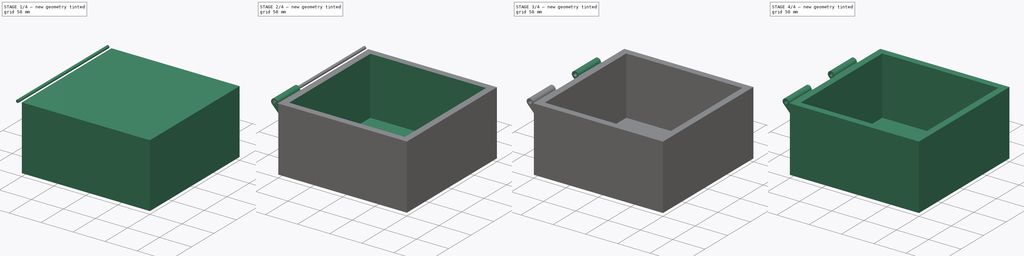
[diagram: build sequence overview — one tinted view per stage of 4, left to right]
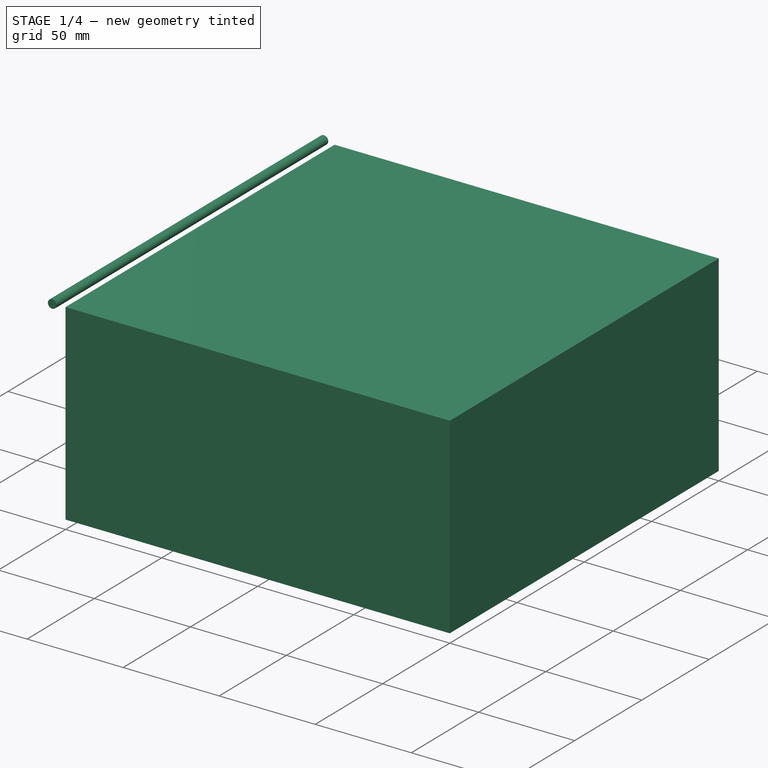
[diagram: stage 1 of 4 — iso view after this stage's code; geometry added in this stage tinted green]
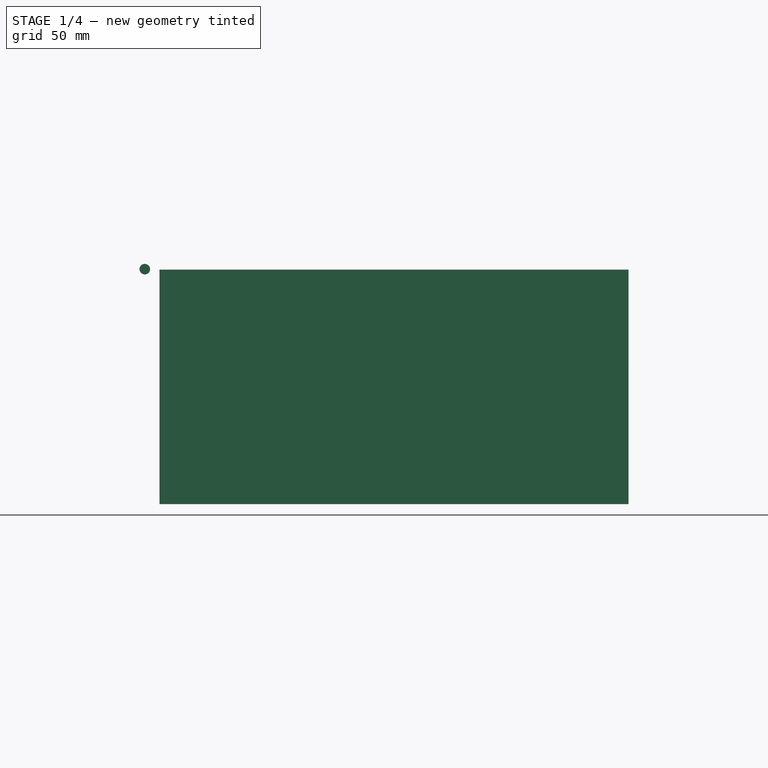
[diagram: stage 1 of 4 — front view after this stage's code; geometry added in this stage tinted green]
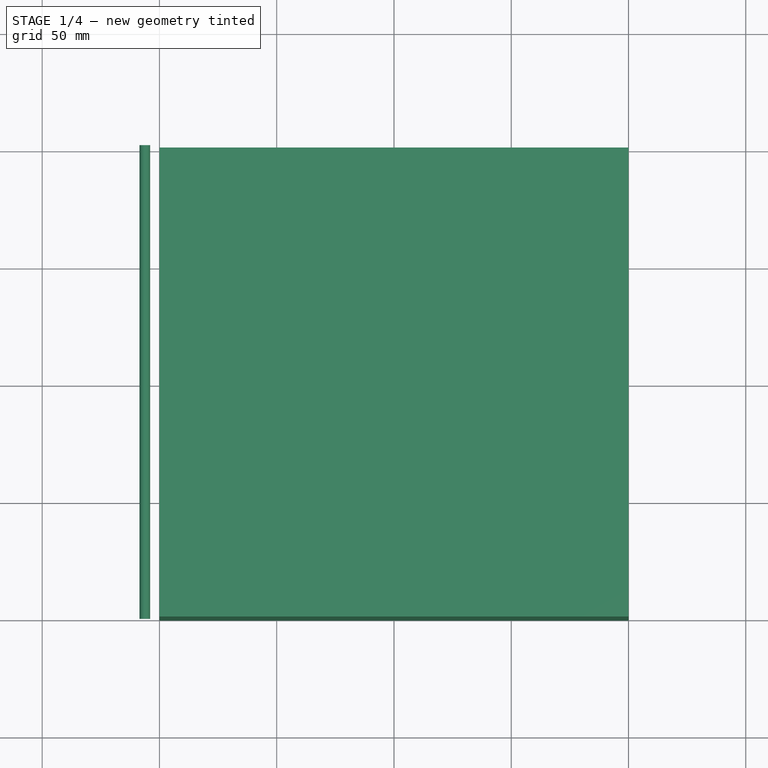
[diagram: stage 1 of 4 — top view after this stage's code; geometry added in this stage tinted green]
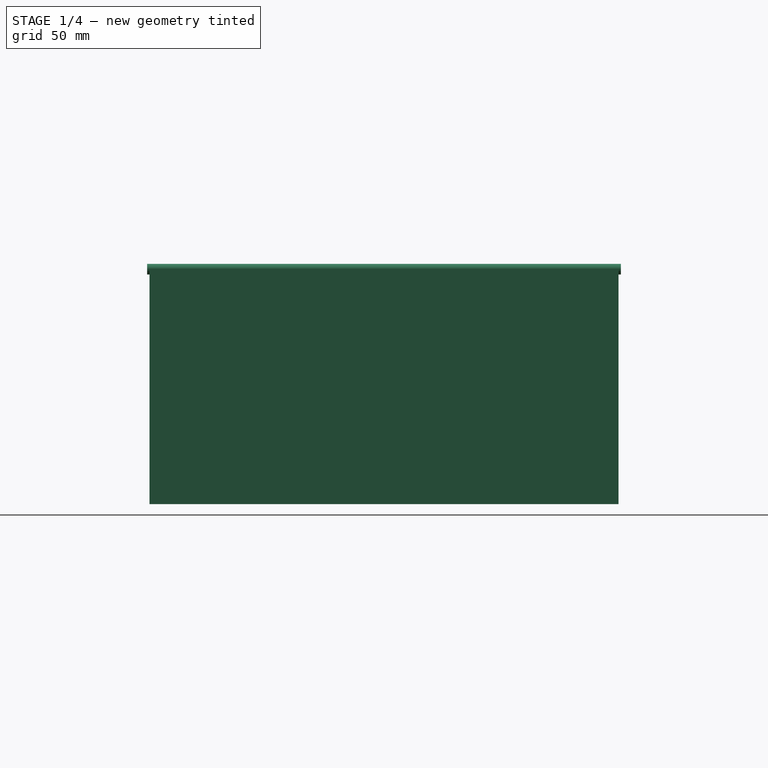
[diagram: stage 1 of 4 — right view after this stage's code; geometry added in this stage tinted green]
FCSTD DOCUMENT  (FreeCAD 0.21R33771 (Git))
Label: hlutur halda
License: All rights reserved
LicenseURL: https://en.wikipedia.org/wiki/All_rights_reserved
objects: Sketcher::SketchObject×7, PartDesign::Pad×5, PartDesign::Body×3, PartDesign::Pocket×2, PartDesign::LinearPattern×2, PartDesign::ShapeBinder×1
note: 27 computed .brp shape members not serialized (recipe doc carries the construction recipe); baked Part::Feature solids carry a one-line shape summary decoded from their .brp

FEATURE [Sketcher::SketchObject] Sketch003
  FullyConstrained = true
  MapMode = 5
  Support = -> [XY_Plane003]
  sketch-geometry (4):
    g0: LineSegment StartX=-100 StartY=100 StartZ=0 EndX=100 EndY=100 EndZ=0
    g1: LineSegment StartX=100 StartY=100 StartZ=0 EndX=100 EndY=-100 EndZ=0
    g2: LineSegment StartX=100 StartY=-100 StartZ=0 EndX=-100 EndY=-100 EndZ=0
    g3: LineSegment StartX=-100 StartY=-100 StartZ=0 EndX=-100 EndY=100 EndZ=0
  constraints (10):
    c: Coincident(g0,g1)
    c: Coincident(g1,g2)
    c: Coincident(g2,g3)
    c: Coincident(g3,g0)
    c: Horizontal(g2)
    c: Vertical(g1)
    c: Equal(g0,g3)
    c: DistanceX(g0,g0) = 200
    c: Symmetric(g0,g0,g-2)
    c: Symmetric(g0,g2,g-1)
FEATURE [PartDesign::Pad] Pad002
  Direction = (0,0,1)
  Length = 100
  Length2 = 10
  Profile = -> Sketch003
  ReferenceAxis = -> Sketch003 [N_Axis]
  Type = 0
FEATURE [PartDesign::Body] Body003  label="top"
  Group = -> [Sketch003,Pad002,Sketch004,Pocket001,Sketch005,Pad003,LinearPattern001]
  Origin = -> Origin003
  Placement = pos=(0,-1.1e-14,200.5) rot=(1,0,0;3.14159rad)
  Tip = -> LinearPattern001
FEATURE [Sketcher::SketchObject] Sketch006
  FullyConstrained = false
  MapMode = 5
  Placement = pos=(0,0,0) rot=(1,0,0;1.5708rad)
  Support = -> [XZ_Plane]
  sketch-geometry (1):
    g0: Circle CenterX=-106.25 CenterY=100.185 CenterZ=0 NormalX=0 NormalY=0 NormalZ=1 AngleXU=0 Radius=2.25
  constraints (1):
    c: Diameter(g0) = 4.5
FEATURE [PartDesign::Pad] Pad004
  Direction = (0,-1,2e-16)
  Length = 101
  Length2 = 101
  Midplane = true
  Placement = pos=(0,0,0) rot=(1,0,0;1.5708rad)
  Profile = -> Sketch006
  ReferenceAxis = -> Sketch006 [N_Axis]
  Type = 4
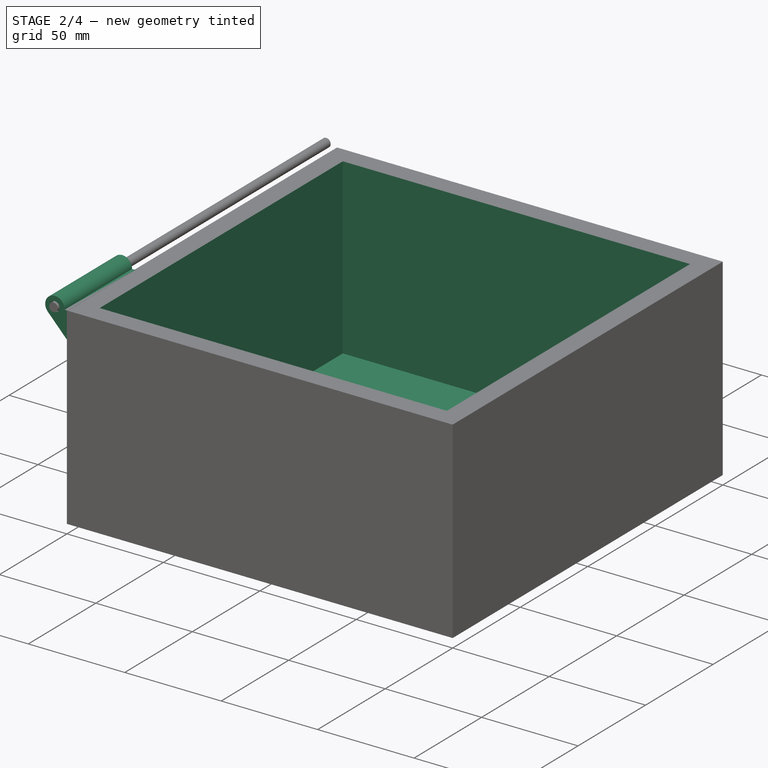
[diagram: stage 2 of 4 — iso view after this stage's code; geometry added in this stage tinted green]
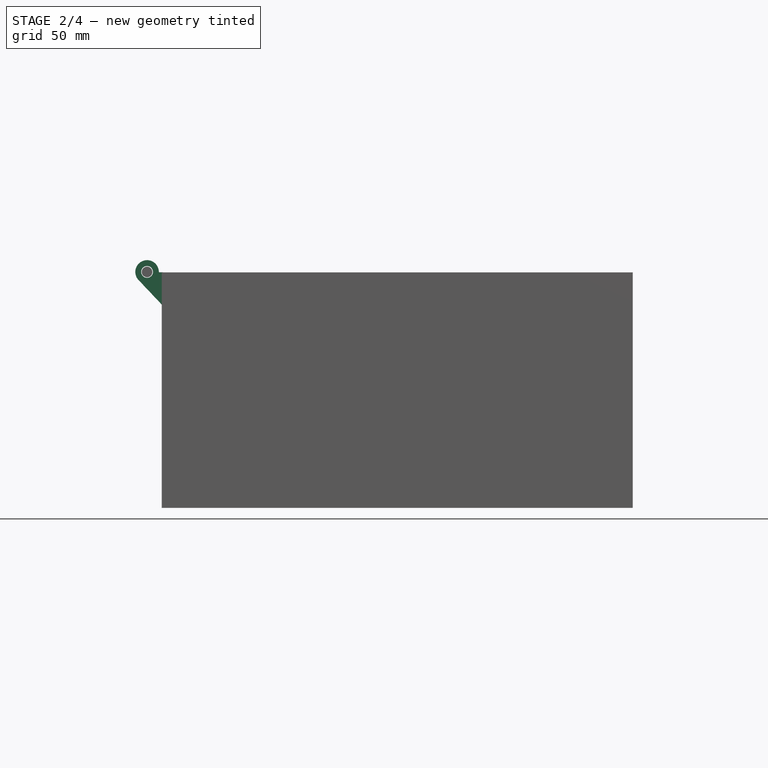
[diagram: stage 2 of 4 — front view after this stage's code; geometry added in this stage tinted green]
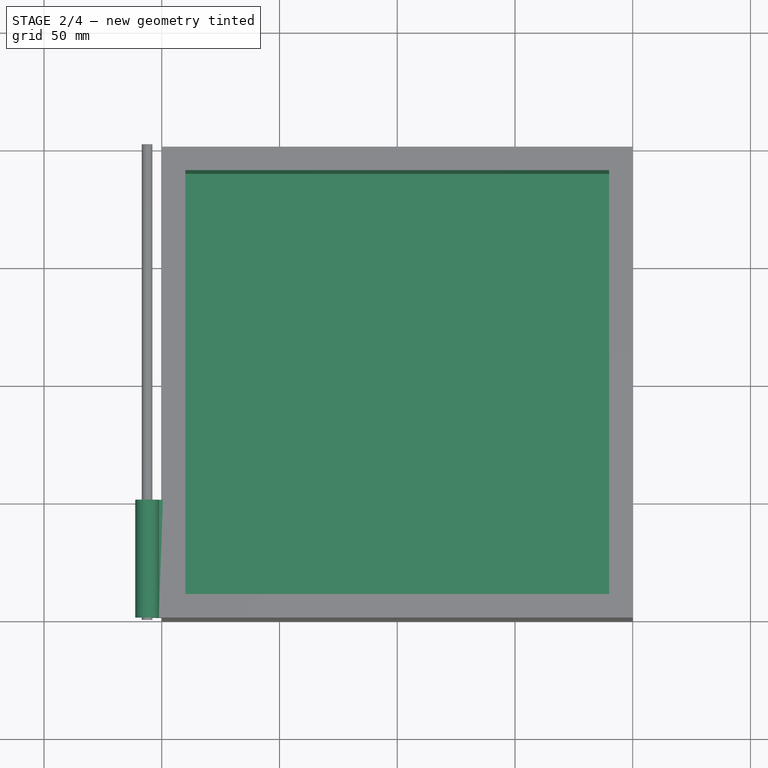
[diagram: stage 2 of 4 — top view after this stage's code; geometry added in this stage tinted green]
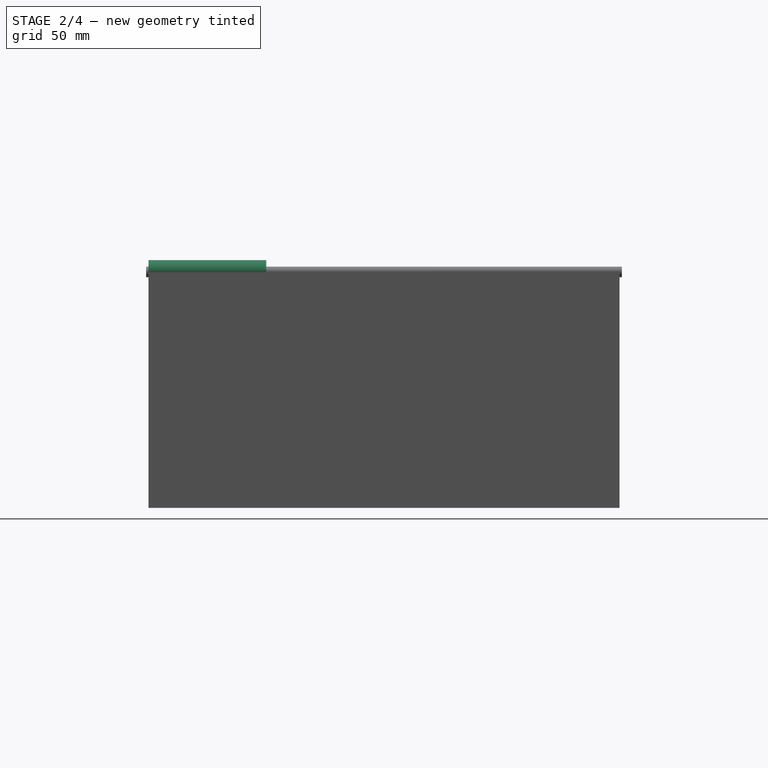
[diagram: stage 2 of 4 — right view after this stage's code; geometry added in this stage tinted green]
FEATURE [Sketcher::SketchObject] Sketch004
  ExternalGeometry = -> [Pad002]
  FullyConstrained = true
  MapMode = 5
  Placement = pos=(0,0,100) rot=(0,0,1;0rad)
  Support = -> [Pad002]
  sketch-geometry (4):
    g0: LineSegment StartX=-90 StartY=90 StartZ=0 EndX=90 EndY=90 EndZ=0
    g1: LineSegment StartX=90 StartY=90 StartZ=0 EndX=90 EndY=-90 EndZ=0
    g2: LineSegment StartX=90 StartY=-90 StartZ=0 EndX=-90 EndY=-90 EndZ=0
    g3: LineSegment StartX=-90 StartY=-90 StartZ=0 EndX=-90 EndY=90 EndZ=0
  constraints (12):
    c: Coincident(g0,g1)
    c: Coincident(g1,g2)
    c: Coincident(g2,g3)
    c: Coincident(g3,g0)
    c: Horizontal(g0)
    c: Horizontal(g2)
    c: Vertical(g1)
    c: Vertical(g3)
    c: DistanceY(g0,g-3) = 10
    c: DistanceX(g-3,g0) = 10
    c: DistanceX(g0,g-4) = 10
    c: DistanceY(g-5,g1) = 10
FEATURE [PartDesign::Pocket] Pocket001
  BaseFeature = -> Pad002
  Direction = (0,0,-1)
  Length = 90
  Length2 = 5
  Profile = -> Sketch004
  ReferenceAxis = -> Sketch004 [N_Axis]
  Type = 0
FEATURE [Sketcher::SketchObject] Sketch005  label="hinge001"
  ExternalGeometry = -> [Pocket001]
  FullyConstrained = false
  MapMode = 5
  Placement = pos=(0,-100,0) rot=(1,0,0;1.5708rad)
  Support = -> [Pocket001]
  sketch-geometry (6):
    g0: ArcOfCircle CenterX=-106.241 CenterY=100.196 CenterZ=0 NormalX=0 NormalY=0 NormalZ=1 AngleXU=0 Radius=5 StartAngle=6.2552 EndAngle=10.1399
    g1: Circle CenterX=-106.241 CenterY=100.196 CenterZ=0 NormalX=0 NormalY=0 NormalZ=1 AngleXU=0 Radius=2.5
    g2: LineSegment StartX=-106.241 StartY=100.196 StartZ=0 EndX=-99.9854 EndY=100.021 EndZ=0
    g3: LineSegment StartX=-110.016 StartY=96.9171 StartZ=0 EndX=-99.5915 EndY=85.8918 EndZ=0
    g4: LineSegment StartX=-99.5915 StartY=85.8918 StartZ=0 EndX=-99.5 EndY=100.056 EndZ=0
    g5: LineSegment StartX=-99.5 StartY=100.056 StartZ=0 EndX=-101.243 EndY=100.056 EndZ=0
  constraints (12):
    c: Diameter(g0) = 10
    c: Coincident(g1,g0)
    c: Diameter(g1) = 5
    c: Coincident(g2,g0)
    c: Coincident(g4,g3)
    c: Horizontal(g5)
    c: Coincident(g4,g5)
    c: DistanceX(g-4,g4) = 0.5
    c: Coincident(g0,g3)
    c: Angle(g3,g2) = 0.785398
    c: Coincident(g0,g5)
    c: PointOnObject(g0,g2)
FEATURE [PartDesign::Pad] Pad003
  BaseFeature = -> Pocket001
  Direction = (0,-1,2e-16)
  Length = 50
  Length2 = 10
  Profile = -> Sketch005
  ReferenceAxis = -> Sketch005 [N_Axis]
  Reversed = true
  Type = 0
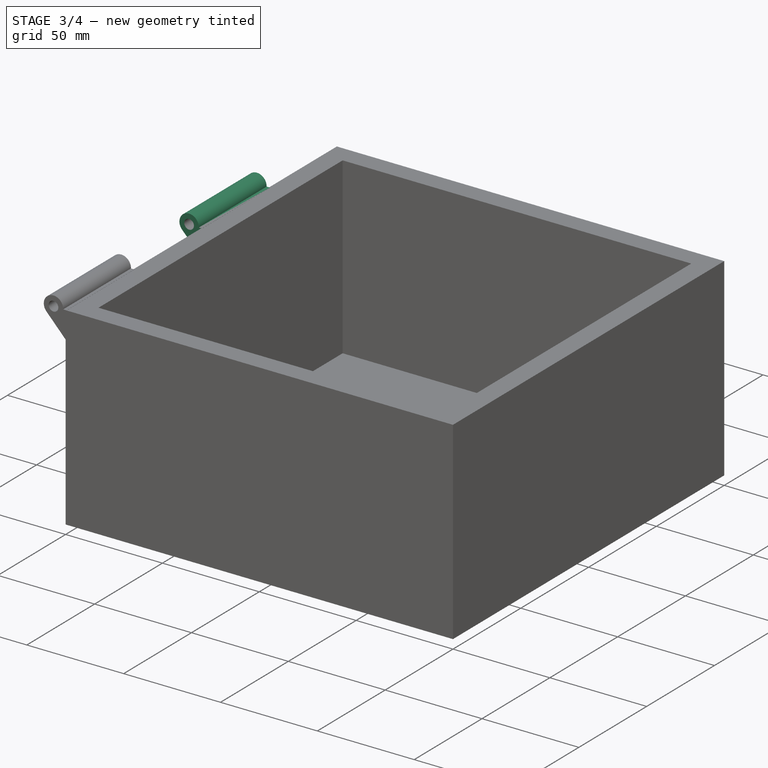
[diagram: stage 3 of 4 — iso view after this stage's code; geometry added in this stage tinted green]
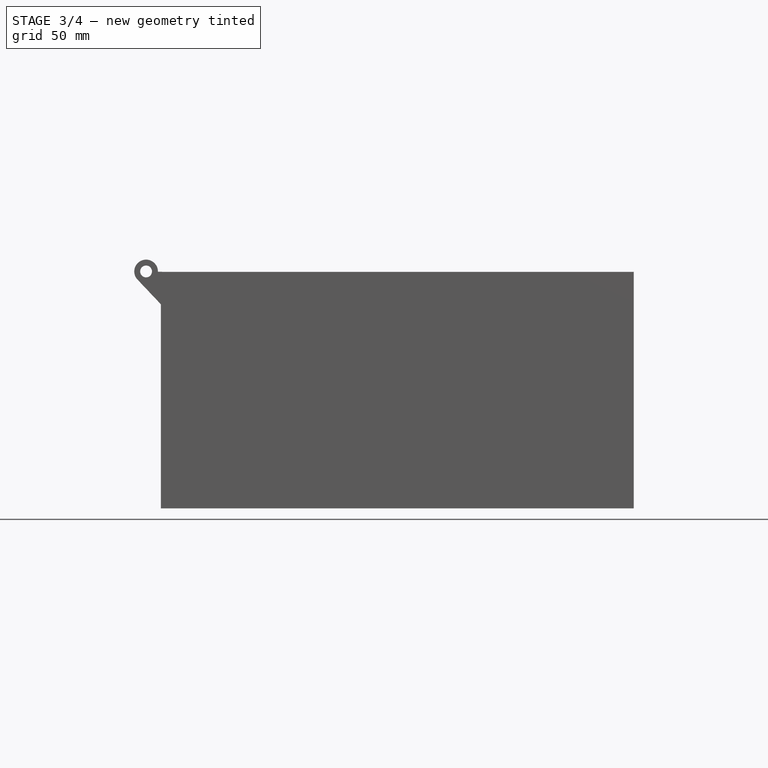
[diagram: stage 3 of 4 — front view after this stage's code; geometry added in this stage tinted green]
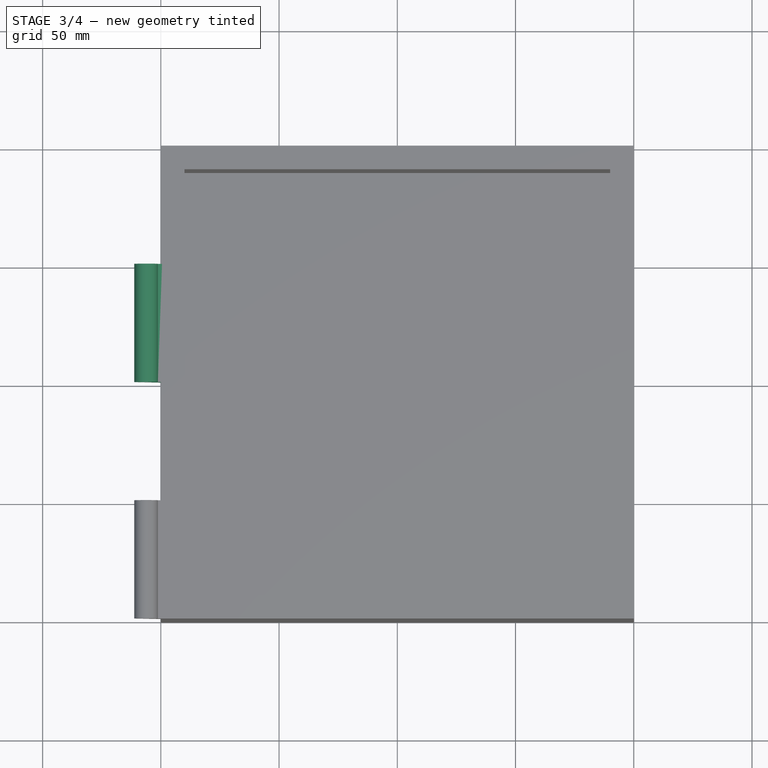
[diagram: stage 3 of 4 — top view after this stage's code; geometry added in this stage tinted green]
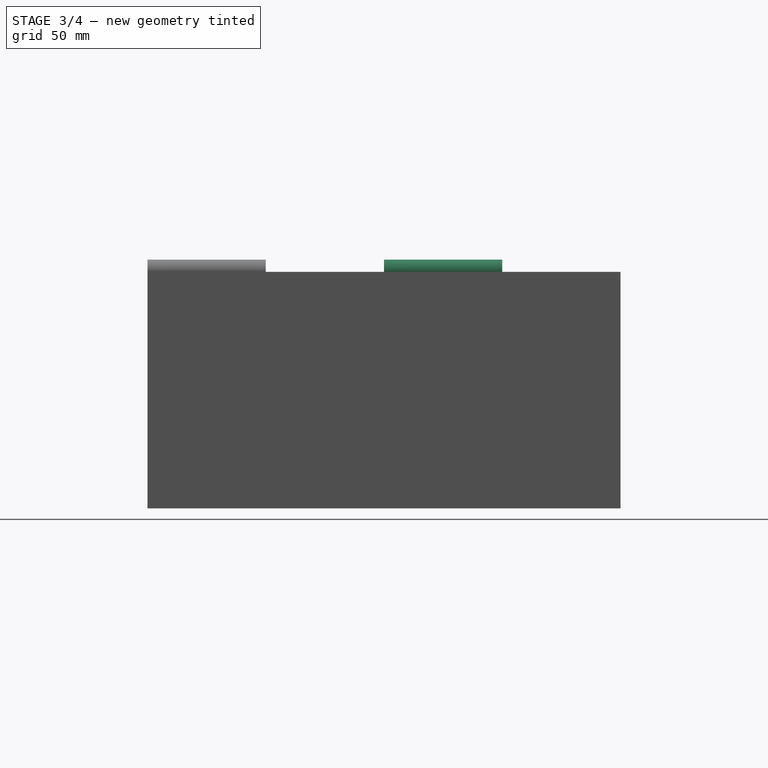
[diagram: stage 3 of 4 — right view after this stage's code; geometry added in this stage tinted green]
FEATURE [PartDesign::LinearPattern] LinearPattern001
  BaseFeature = -> Pad003
  Direction = -> Sketch005 [N_Axis]
  Length = 100
  Occurrences = 2
  Originals = -> [Pad003]
  Reversed = true
FEATURE [Sketcher::SketchObject] Sketch
  FullyConstrained = true
  MapMode = 2
  Placement = pos=(0,0,0) rot=(1,0,0;1.5708rad)
  Support = -> [Pad004]
  sketch-geometry (4):
    g0: LineSegment StartX=-100 StartY=100 StartZ=0 EndX=100 EndY=100 EndZ=0
    g1: LineSegment StartX=100 StartY=100 StartZ=0 EndX=100 EndY=-100 EndZ=0
    g2: LineSegment StartX=100 StartY=-100 StartZ=0 EndX=-100 EndY=-100 EndZ=0
    g3: LineSegment StartX=-100 StartY=-100 StartZ=0 EndX=-100 EndY=100 EndZ=0
  constraints (10):
    c: Coincident(g0,g1)
    c: Coincident(g1,g2)
    c: Coincident(g2,g3)
    c: Coincident(g3,g0)
    c: Horizontal(g2)
    c: Vertical(g1)
    c: Equal(g0,g3)
    c: DistanceX(g0,g0) = 200
    c: Symmetric(g0,g0,g-2)
    c: Symmetric(g0,g2,g-1)
FEATURE [PartDesign::Pad] Pad
  Direction = (0,-1,2e-16)
  Length = 100
  Length2 = 10
  Placement = pos=(0,0,0) rot=(1,0,0;1.5708rad)
  Profile = -> Sketch
  ReferenceAxis = -> Sketch [N_Axis]
  Type = 0
FEATURE [Sketcher::SketchObject] Sketch001
  ExternalGeometry = -> [Pad]
  FullyConstrained = true
  MapMode = 5
  Placement = pos=(0,0,100) rot=(0,0,1;0rad)
  Support = -> [Pad]
  sketch-geometry (4):
    g0: LineSegment StartX=-90 StartY=90 StartZ=0 EndX=90 EndY=90 EndZ=0
    g1: LineSegment StartX=90 StartY=90 StartZ=0 EndX=90 EndY=-90 EndZ=0
    g2: LineSegment StartX=90 StartY=-90 StartZ=0 EndX=-90 EndY=-90 EndZ=0
    g3: LineSegment StartX=-90 StartY=-90 StartZ=0 EndX=-90 EndY=90 EndZ=0
  constraints (12):
    c: Coincident(g0,g1)
    c: Coincident(g1,g2)
    c: Coincident(g2,g3)
    c: Coincident(g3,g0)
    c: Horizontal(g0)
    c: Horizontal(g2)
    c: Vertical(g1)
    c: Vertical(g3)
    c: DistanceY(g0,g-3) = 10
    c: DistanceX(g-3,g0) = 10
    c: DistanceX(g0,g-4) = 10
    c: DistanceY(g-5,g1) = 10
FEATURE [PartDesign::Pocket] Pocket
  BaseFeature = -> Pad
  Direction = (0,0,-1)
  Length = 90
  Length2 = 5
  Profile = -> Sketch001
  ReferenceAxis = -> Sketch001 [N_Axis]
  Type = 0
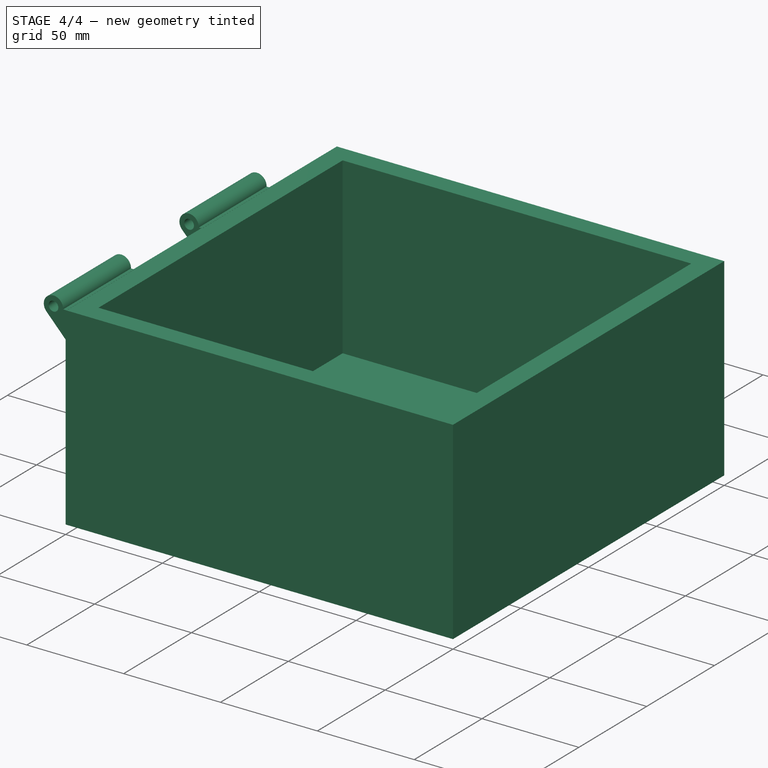
[diagram: stage 4 of 4 — iso view after this stage's code; geometry added in this stage tinted green]
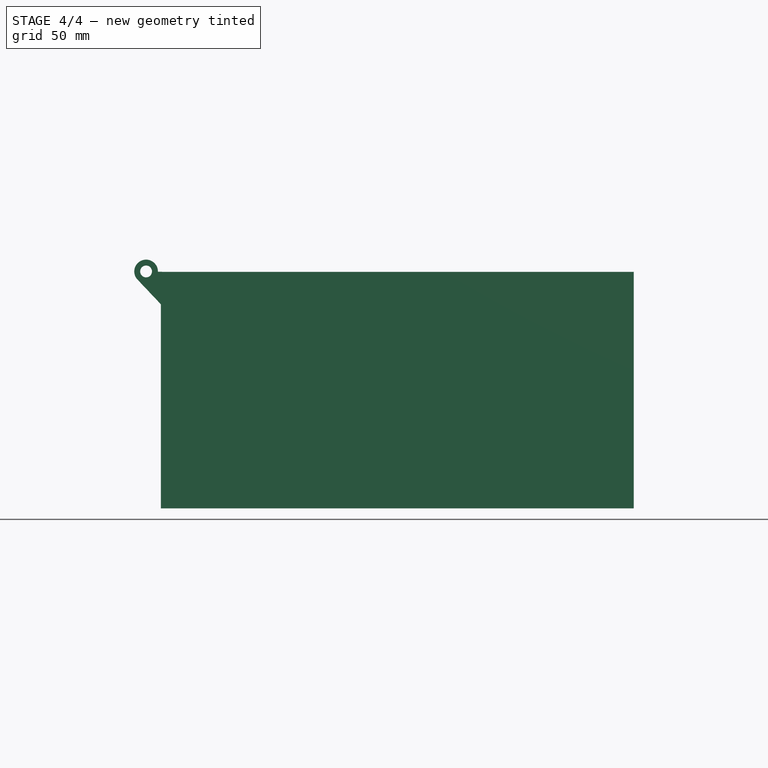
[diagram: stage 4 of 4 — front view after this stage's code; geometry added in this stage tinted green]
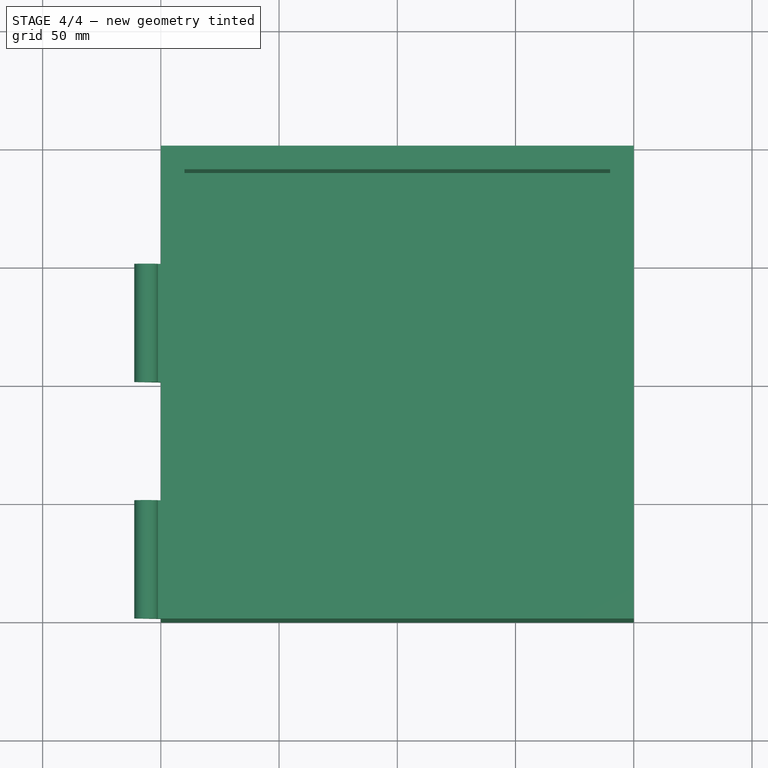
[diagram: stage 4 of 4 — top view after this stage's code; geometry added in this stage tinted green]
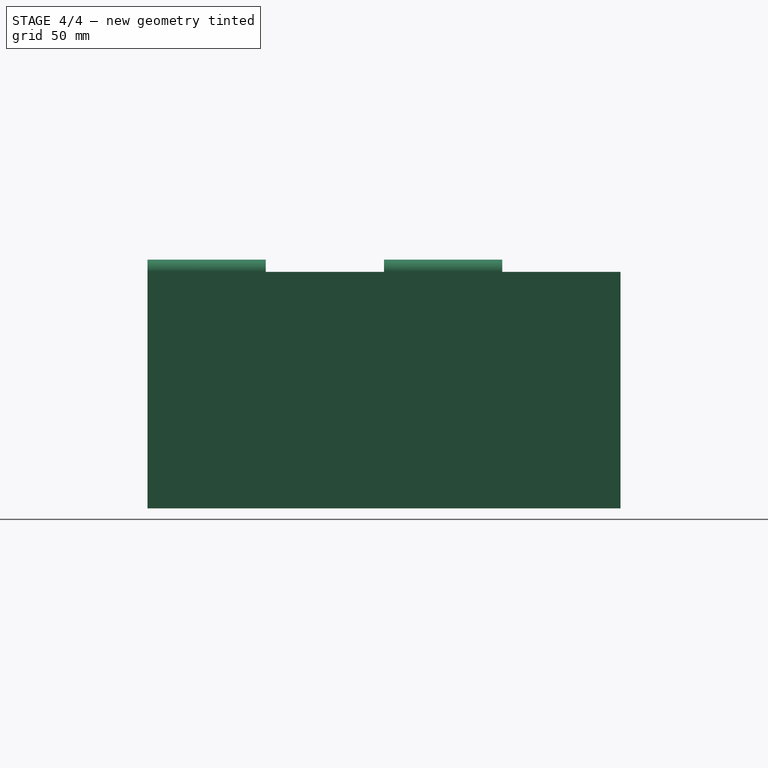
[diagram: stage 4 of 4 — right view after this stage's code; geometry added in this stage tinted green]
FEATURE [Sketcher::SketchObject] Sketch002  label="hinge"
  ExternalGeometry = -> [Pocket]
  FullyConstrained = false
  MapMode = 5
  Placement = pos=(0,-100,0) rot=(1,0,0;1.5708rad)
  Support = -> [Pocket]
  sketch-geometry (6):
    g0: ArcOfCircle CenterX=-106.241 CenterY=100.196 CenterZ=0 NormalX=0 NormalY=0 NormalZ=1 AngleXU=0 Radius=5 StartAngle=6.2552 EndAngle=10.1399
    g1: Circle CenterX=-106.241 CenterY=100.196 CenterZ=0 NormalX=0 NormalY=0 NormalZ=1 AngleXU=0 Radius=2.5
    g2: LineSegment StartX=-106.241 StartY=100.196 StartZ=0 EndX=-99.9854 EndY=100.021 EndZ=0
    g3: LineSegment StartX=-110.016 StartY=96.9171 StartZ=0 EndX=-99.5915 EndY=85.8918 EndZ=0
    g4: LineSegment StartX=-99.5915 StartY=85.8918 StartZ=0 EndX=-99.5 EndY=100.056 EndZ=0
    g5: LineSegment StartX=-99.5 StartY=100.056 StartZ=0 EndX=-101.243 EndY=100.056 EndZ=0
  constraints (12):
    c: Diameter(g0) = 10
    c: Coincident(g1,g0)
    c: Diameter(g1) = 5
    c: Coincident(g2,g0)
    c: Coincident(g4,g3)
    c: Horizontal(g5)
    c: Coincident(g4,g5)
    c: DistanceX(g-4,g4) = 0.5
    c: Coincident(g0,g3)
    c: Angle(g3,g2) = 0.785398
    c: Coincident(g0,g5)
    c: PointOnObject(g0,g2)
FEATURE [PartDesign::Pad] Pad001
  BaseFeature = -> Pocket
  Direction = (0,-1,2e-16)
  Length = 50
  Length2 = 10
  Profile = -> Sketch002
  ReferenceAxis = -> Sketch002 [N_Axis]
  Reversed = true
  Type = 0
FEATURE [PartDesign::LinearPattern] LinearPattern
  BaseFeature = -> Pad001
  Direction = -> Sketch002 [N_Axis]
  Length = 100
  Occurrences = 2
  Originals = -> [Pad001]
  Reversed = true
FEATURE [PartDesign::Body] Body002  label="bottom"
  Group = -> [Sketch,Pad,Sketch001,Pocket,Sketch002,Pad001,LinearPattern]
  Origin = -> Origin002
  Tip = -> LinearPattern
FEATURE [PartDesign::ShapeBinder] CopyLinearPattern001
  TraceSupport = false
FEATURE [PartDesign::Body] Body
  Group = -> [Sketch006,Pad004,CopyLinearPattern001]
  Origin = -> Origin
  Tip = -> Pad004
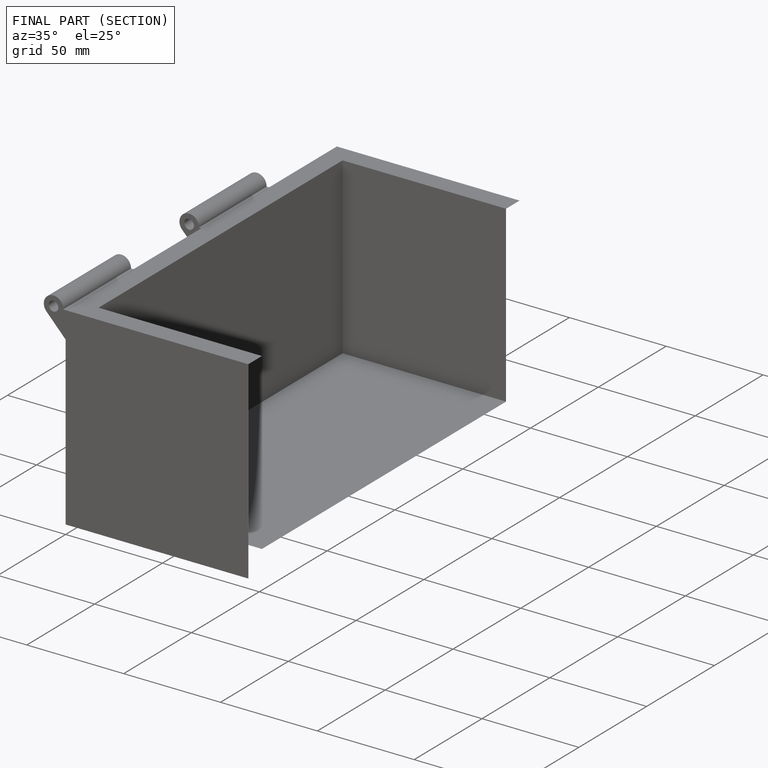
[diagram: finished part — half-section view (interior)]
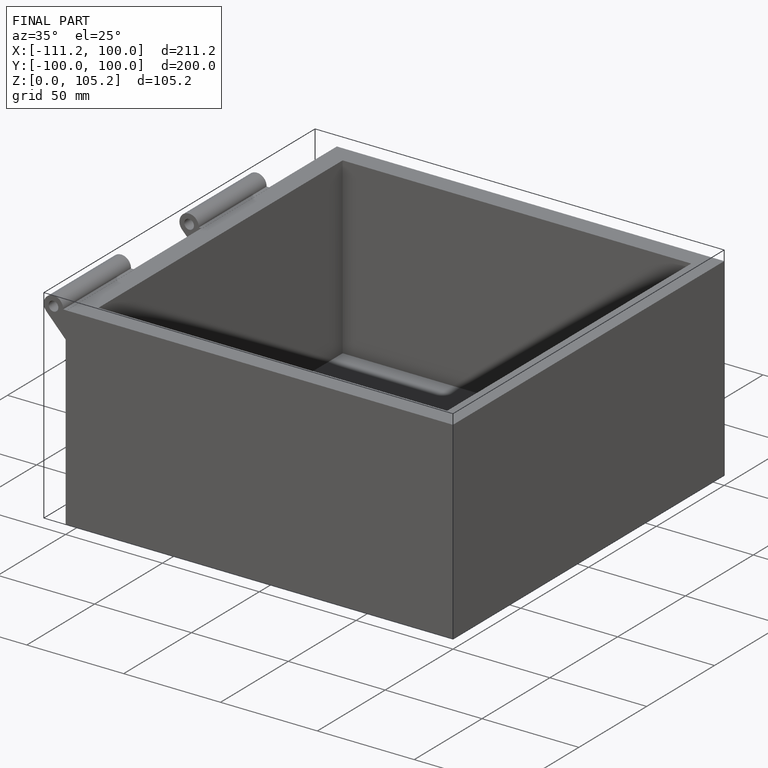
[diagram: finished part — iso view with bounding-box wireframe]
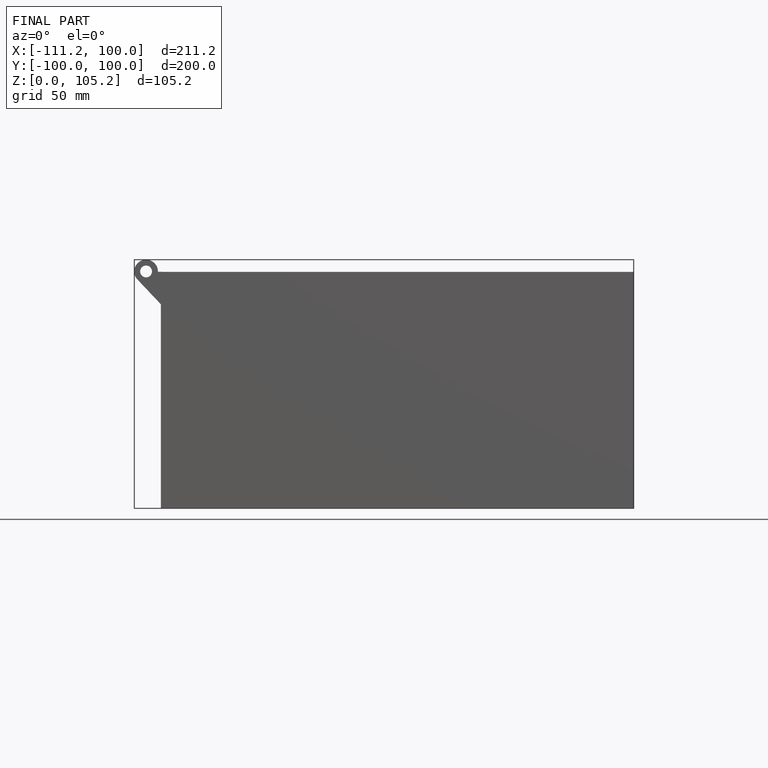
[diagram: finished part — front view with bounding-box wireframe]
